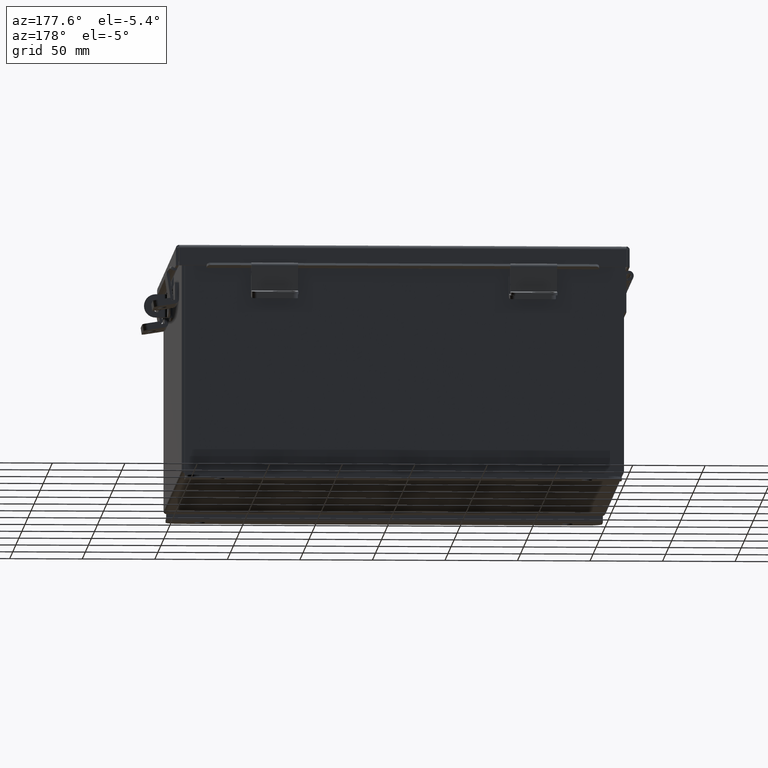
[diagram: clean part render]
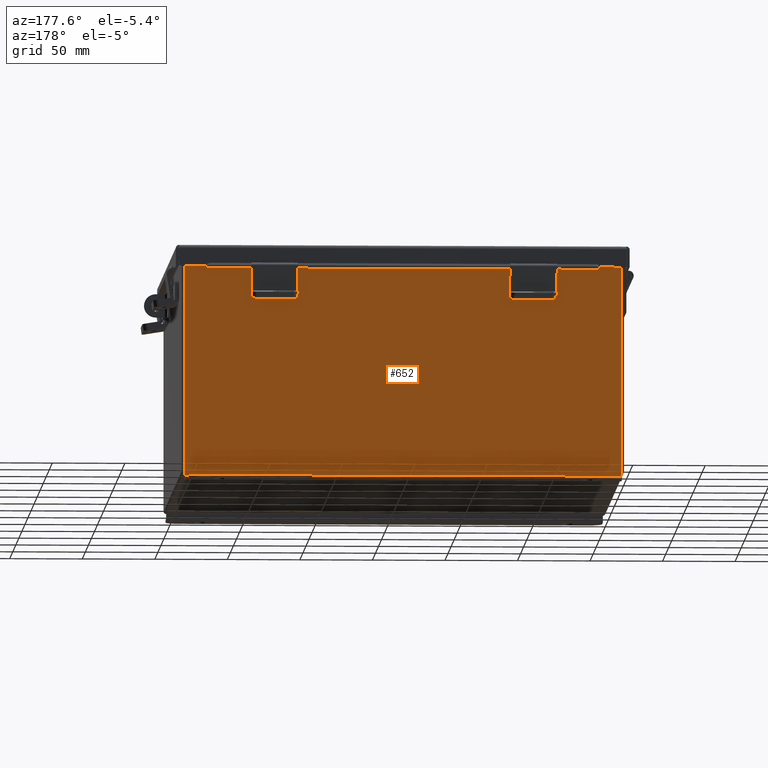
[diagram: same view with one face highlighted and labeled with its STEP entity id]
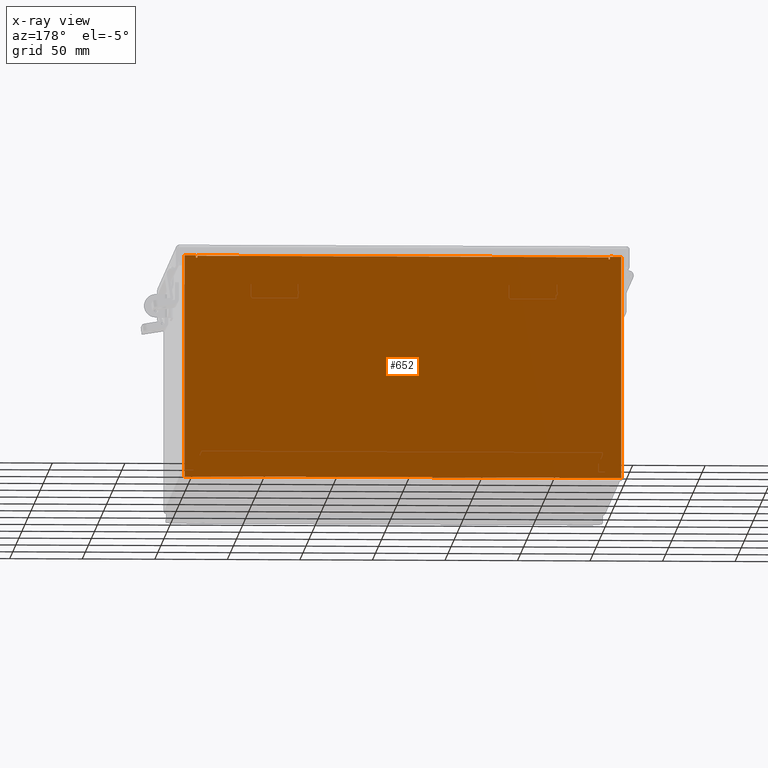
[diagram: x-ray of the same camera — body ghosted, the highlighted face saturated]
A machine part, auxiliary view. The second image highlights one B-rep face of the part: STEP entity #652.
The next image is the same camera in x-ray: the body ghosted, the highlighted face saturated — about 0% of this face is hidden behind the body in this view.
In plain terms, the highlighted planar face has unit normal (0, -1, 0).
Its self-contained STEP definition (entity closure, byte-faithful):
#95 = VERTEX_POINT ( 'NONE', #13650 ) ;
#214 = CIRCLE ( 'NONE', #8050, 0.01867500000000003900 ) ;
#364 = DIRECTION ( 'NONE',  ( -0.0000000000000000000, -0.0000000000000000000, 1.000000000000000000 ) ) ;
#533 = EDGE_CURVE ( 'NONE', #14481, #7987, #13152, .T. ) ;
#592 = CARTESIAN_POINT ( 'NONE',  ( -5.925300000000001800, 0.0000000000000000000, 2.925300000000000500 ) ) ;
#652 = ADVANCED_FACE ( 'NONE', ( #4097 ), #2834, .F. ) ;
#911 = ORIENTED_EDGE ( 'NONE', *, *, #9619, .F. ) ;
#1061 = DIRECTION ( 'NONE',  ( 1.000000000000000000, 0.0000000000000000000, 0.0000000000000000000 ) ) ;
#1087 = VERTEX_POINT ( 'NONE', #15314 ) ;
#1218 = LINE ( 'NONE', #592, #4414 ) ;
#1421 = VECTOR ( 'NONE', #2035, 39.37007874015748100 ) ;
#1939 = CARTESIAN_POINT ( 'NONE',  ( 5.619650000000000000, 0.0000000000000000000, 2.925300000000000500 ) ) ;
#2035 = DIRECTION ( 'NONE',  ( 0.0000000000000000000, 0.0000000000000000000, 1.000000000000000000 ) ) ;
#2053 = CARTESIAN_POINT ( 'NONE',  ( -5.619650000000000000, 0.0000000000000000000, 2.925300000000000500 ) ) ;
#2339 = LINE ( 'NONE', #14888, #9195 ) ;
#2732 = CARTESIAN_POINT ( 'NONE',  ( 5.582299999999999200, 0.0000000000000000000, 2.874949999999999200 ) ) ;
#2834 = PLANE ( 'NONE',  #17018 ) ;
#2903 = DIRECTION ( 'NONE',  ( 1.000000000000000000, 0.0000000000000000000, 0.0000000000000000000 ) ) ;
#3246 = CARTESIAN_POINT ( 'NONE',  ( 5.619649999999998300, 0.0000000000000000000, 2.874949999999999200 ) ) ;
#3395 = CARTESIAN_POINT ( 'NONE',  ( 5.582299999999999200, 0.0000000000000000000, 0.0000000000000000000 ) ) ;
#4097 = FACE_OUTER_BOUND ( 'NONE', #7112, .T. ) ;
#4195 = EDGE_CURVE ( 'NONE', #6651, #8054, #4326, .T. ) ;
#4270 = VECTOR ( 'NONE', #1061, 39.37007874015748100 ) ;
#4326 = LINE ( 'NONE', #4690, #6697 ) ;
#4342 = ORIENTED_EDGE ( 'NONE', *, *, #6053, .T. ) ;
#4360 = ORIENTED_EDGE ( 'NONE', *, *, #5373, .F. ) ;
#4367 = DIRECTION ( 'NONE',  ( -0.0000000000000000000, 1.000000000000000000, -0.0000000000000000000 ) ) ;
#4382 = VERTEX_POINT ( 'NONE', #1939 ) ;
#4396 = ORIENTED_EDGE ( 'NONE', *, *, #7141, .F. ) ;
#4414 = VECTOR ( 'NONE', #11585, 39.37007874015748100 ) ;
#4503 = LINE ( 'NONE', #15657, #11394 ) ;
#4690 = CARTESIAN_POINT ( 'NONE',  ( -5.582300000000000900, 2.185478394931410600E-015, 2.912299999999998300 ) ) ;
#4872 = DIRECTION ( 'NONE',  ( -2.170286390199955400E-014, 0.0000000000000000000, -1.000000000000000000 ) ) ;
#5275 = ORIENTED_EDGE ( 'NONE', *, *, #11466, .F. ) ;
#5373 = EDGE_CURVE ( 'NONE', #4382, #15933, #4503, .T. ) ;
#6053 = EDGE_CURVE ( 'NONE', #4382, #95, #11591, .T. ) ;
#6249 = VECTOR ( 'NONE', #11955, 39.37007874015748100 ) ;
#6651 = VERTEX_POINT ( 'NONE', #11802 ) ;
#6689 = AXIS2_PLACEMENT_3D ( 'NONE', #12615, #4367, #13970 ) ;
#6697 = VECTOR ( 'NONE', #2903, 39.37007874015748100 ) ;
#7112 = EDGE_LOOP ( 'NONE', ( #9154, #911, #10150, #8542, #5275, #11898, #4360, #4342, #10062, #4396, #14248, #9275 ) ) ;
#7141 = EDGE_CURVE ( 'NONE', #12878, #14664, #14774, .T. ) ;
#7370 = VECTOR ( 'NONE', #364, 39.37007874015748100 ) ;
#7600 = CARTESIAN_POINT ( 'NONE',  ( -5.600975000000000000, 0.0000000000000000000, 2.874949999999999200 ) ) ;
#7688 = CARTESIAN_POINT ( 'NONE',  ( 5.582299999999999200, 0.0000000000000000000, 2.912299999999998300 ) ) ;
#7987 = VERTEX_POINT ( 'NONE', #2053 ) ;
#8017 = DIRECTION ( 'NONE',  ( 0.0000000000000000000, 0.0000000000000000000, -1.000000000000000000 ) ) ;
#8050 = AXIS2_PLACEMENT_3D ( 'NONE', #7600, #17252, #8957 ) ;
#8054 = VERTEX_POINT ( 'NONE', #7688 ) ;
#8542 = ORIENTED_EDGE ( 'NONE', *, *, #4195, .T. ) ;
#8570 = CARTESIAN_POINT ( 'NONE',  ( -5.925300000000001800, 0.0000000000000000000, 2.925300000000000500 ) ) ;
#8957 = DIRECTION ( 'NONE',  ( 0.0000000000000000000, 0.0000000000000000000, -1.000000000000000000 ) ) ;
#8965 = CIRCLE ( 'NONE', #6689, 0.01867500000000003900 ) ;
#9154 = ORIENTED_EDGE ( 'NONE', *, *, #533, .F. ) ;
#9195 = VECTOR ( 'NONE', #8017, 39.37007874015748100 ) ;
#9275 = ORIENTED_EDGE ( 'NONE', *, *, #11225, .T. ) ;
#9619 = EDGE_CURVE ( 'NONE', #13664, #14481, #214, .T. ) ;
#10062 = ORIENTED_EDGE ( 'NONE', *, *, #15945, .T. ) ;
#10150 = ORIENTED_EDGE ( 'NONE', *, *, #16940, .F. ) ;
#11089 = DIRECTION ( 'NONE',  ( 1.000000000000000000, -0.0000000000000000000, -0.0000000000000000000 ) ) ;
#11223 = CARTESIAN_POINT ( 'NONE',  ( 5.925299999999999100, 0.0000000000000000000, -3.099299999999999900 ) ) ;
#11225 = EDGE_CURVE ( 'NONE', #1087, #7987, #1218, .T. ) ;
#11394 = VECTOR ( 'NONE', #4872, 39.37007874015748100 ) ;
#11466 = EDGE_CURVE ( 'NONE', #12402, #8054, #12383, .T. ) ;
#11585 = DIRECTION ( 'NONE',  ( 1.000000000000000000, 0.0000000000000000000, 0.0000000000000000000 ) ) ;
#11591 = LINE ( 'NONE', #16171, #4270 ) ;
#11610 = CARTESIAN_POINT ( 'NONE',  ( 5.925299999999999100, 0.0000000000000000000, 2.925300000000000500 ) ) ;
#11802 = CARTESIAN_POINT ( 'NONE',  ( -5.582300000000000000, 2.185478394931410600E-015, 2.912299999999998300 ) ) ;
#11898 = ORIENTED_EDGE ( 'NONE', *, *, #17839, .F. ) ;
#11955 = DIRECTION ( 'NONE',  ( 0.0000000000000000000, 0.0000000000000000000, 1.000000000000000000 ) ) ;
#12197 = DIRECTION ( 'NONE',  ( 0.0000000000000000000, -1.000000000000000000, 0.0000000000000000000 ) ) ;
#12318 = CARTESIAN_POINT ( 'NONE',  ( -5.619650000000000000, 0.0000000000000000000, 2.874949999999999200 ) ) ;
#12383 = LINE ( 'NONE', #3395, #1421 ) ;
#12402 = VERTEX_POINT ( 'NONE', #2732 ) ;
#12589 = EDGE_CURVE ( 'NONE', #12878, #1087, #14250, .T. ) ;
#12615 = CARTESIAN_POINT ( 'NONE',  ( 5.600974999999998300, 0.0000000000000000000, 2.874949999999999200 ) ) ;
#12878 = VERTEX_POINT ( 'NONE', #15952 ) ;
#12924 = LINE ( 'NONE', #11610, #15748 ) ;
#13007 = DIRECTION ( 'NONE',  ( 0.0000000000000000000, 0.0000000000000000000, -1.000000000000000000 ) ) ;
#13152 = LINE ( 'NONE', #17769, #6249 ) ;
#13599 = DIRECTION ( 'NONE',  ( 0.0000000000000000000, -0.0000000000000000000, -1.000000000000000000 ) ) ;
#13650 = CARTESIAN_POINT ( 'NONE',  ( 5.925299999999999100, 0.0000000000000000000, 2.925300000000000500 ) ) ;
#13664 = VERTEX_POINT ( 'NONE', #17600 ) ;
#13970 = DIRECTION ( 'NONE',  ( 0.0000000000000000000, 0.0000000000000000000, -1.000000000000000000 ) ) ;
#14248 = ORIENTED_EDGE ( 'NONE', *, *, #12589, .T. ) ;
#14250 = LINE ( 'NONE', #8570, #7370 ) ;
#14481 = VERTEX_POINT ( 'NONE', #12318 ) ;
#14664 = VERTEX_POINT ( 'NONE', #11223 ) ;
#14774 = LINE ( 'NONE', #16667, #17179 ) ;
#14888 = CARTESIAN_POINT ( 'NONE',  ( -5.582300000000000000, 0.0000000000000000000, 0.0000000000000000000 ) ) ;
#15314 = CARTESIAN_POINT ( 'NONE',  ( -5.925300000000001800, 0.0000000000000000000, 2.925300000000000500 ) ) ;
#15657 = CARTESIAN_POINT ( 'NONE',  ( 5.619649999999937000, 0.0000000000000000000, -1.218404205174261500E-013 ) ) ;
#15748 = VECTOR ( 'NONE', #13007, 39.37007874015748100 ) ;
#15933 = VERTEX_POINT ( 'NONE', #3246 ) ;
#15945 = EDGE_CURVE ( 'NONE', #95, #14664, #12924, .T. ) ;
#15952 = CARTESIAN_POINT ( 'NONE',  ( -5.925300000000000000, 0.0000000000000000000, -3.099299999999999900 ) ) ;
#16171 = CARTESIAN_POINT ( 'NONE',  ( -5.925300000000001800, 0.0000000000000000000, 2.925300000000000500 ) ) ;
#16667 = CARTESIAN_POINT ( 'NONE',  ( -5.925300000000001800, 0.0000000000000000000, -3.099299999999999900 ) ) ;
#16940 = EDGE_CURVE ( 'NONE', #6651, #13664, #2339, .T. ) ;
#17018 = AXIS2_PLACEMENT_3D ( 'NONE', #17523, #12197, #13599 ) ;
#17179 = VECTOR ( 'NONE', #11089, 39.37007874015748100 ) ;
#17252 = DIRECTION ( 'NONE',  ( -0.0000000000000000000, 1.000000000000000000, -0.0000000000000000000 ) ) ;
#17523 = CARTESIAN_POINT ( 'NONE',  ( 0.0000000000000000000, 0.0000000000000000000, 0.0000000000000000000 ) ) ;
#17600 = CARTESIAN_POINT ( 'NONE',  ( -5.582300000000000000, 0.0000000000000000000, 2.874949999999999200 ) ) ;
#17769 = CARTESIAN_POINT ( 'NONE',  ( -5.619650000000000000, 0.0000000000000000000, 0.0000000000000000000 ) ) ;
#17839 = EDGE_CURVE ( 'NONE', #15933, #12402, #8965, .T. ) ;